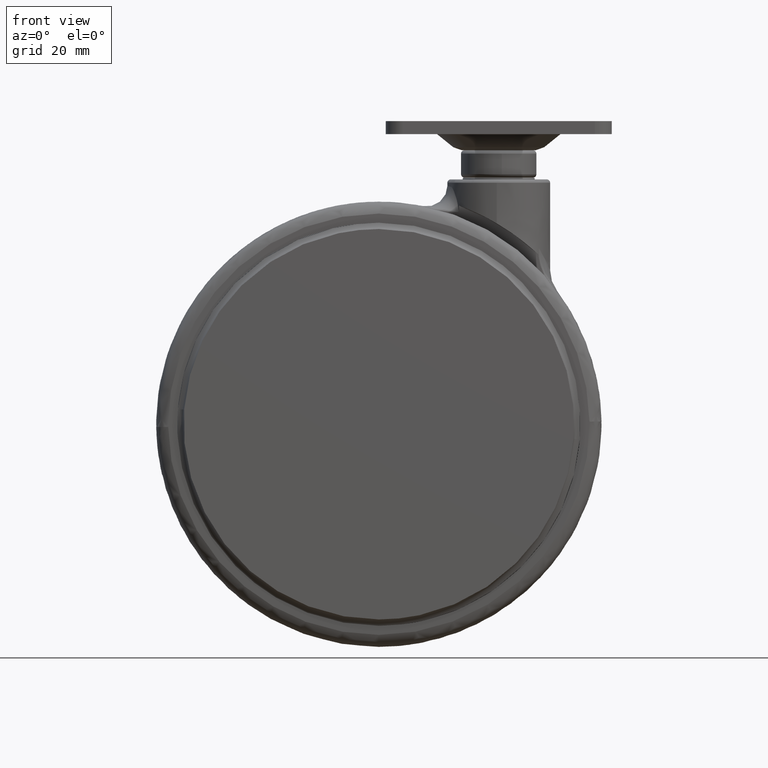
[diagram: clean part render]
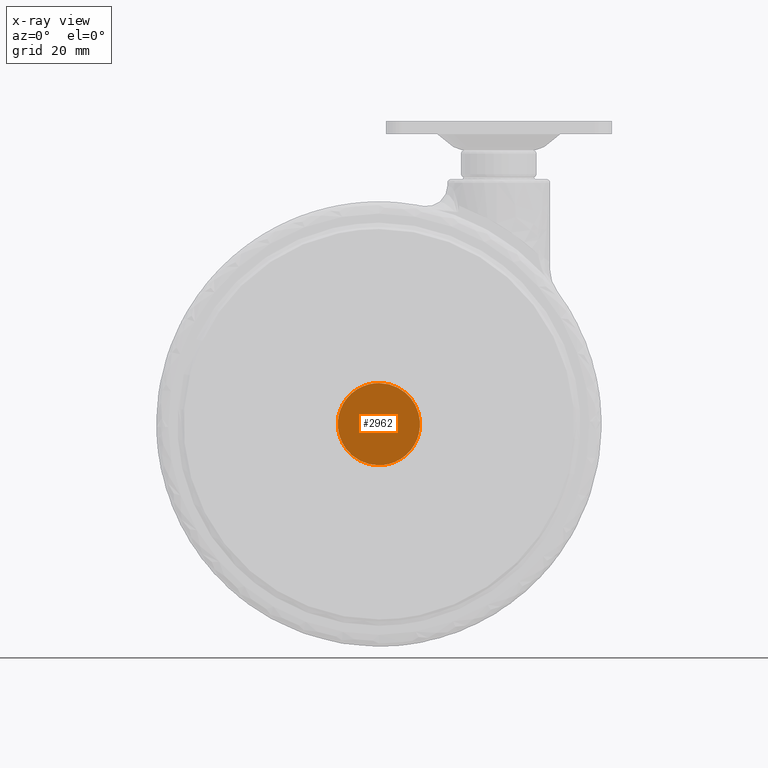
[diagram: x-ray — body ghosted, one internal face saturated and labeled with its STEP entity id]
A machine part, front view, then the same camera in x-ray: the body is ghosted and one INTERNAL B-rep face — a face not visible from any outside direction — is saturated and labeled: STEP entity #2962.
In plain terms, the highlighted face is a freeform B-spline surface patch.
Its self-contained STEP definition (entity closure, byte-faithful):
#2891=CARTESIAN_POINT('',(-21.801214024870561,9.500000000000000,-84.698799953483316));
#2892=CARTESIAN_POINT('',(-21.801214024870571,9.500000000000000,-58.301199402786487));
#2893=CARTESIAN_POINT('',(-48.198785545975987,9.500000000000000,-84.698799953483316));
#2894=CARTESIAN_POINT('',(-48.198785545976001,9.500000000000000,-58.301199402786487));
#2895=B_SPLINE_SURFACE_WITH_KNOTS('',1,1,((#2891,#2893),(#2892,#2894)),.UNSPECIFIED.,.F.,.F.,.U.,(2,2),(2,2),(0.0,26.397600550696819),(0.0,26.397571521105430),.UNSPECIFIED.);
#2896=CARTESIAN_POINT('',(-45.644131890967763,9.500000000000000,-77.040979722726490));
#2897=VERTEX_POINT('',#2896);
#2898=CARTESIAN_POINT('',(-35.0,9.500000000000000,-59.500000000000000));
#2899=VERTEX_POINT('',#2898);
#2900=CARTESIAN_POINT('',(-45.644131890967756,9.499999999999998,-77.040979722726505));
#2901=CARTESIAN_POINT('',(-47.0,9.500000000000000,-74.436379146389015));
#2902=CARTESIAN_POINT('',(-47.0,9.500000000000000,-71.500000000000000));
#2903=CARTESIAN_POINT('',(-47.000000000000007,9.500000000000000,-59.500000000000007));
#2904=CARTESIAN_POINT('',(-35.0,9.500000000000000,-59.500000000000000));
#2912=(BOUNDED_CURVE()B_SPLINE_CURVE(2,(#2900,#2901,#2902,#2903,#2904),.UNSPECIFIED.,.F.,.U.)B_SPLINE_CURVE_WITH_KNOTS((3,2,3),(0.671447928644299,0.750000000000000,1.0),.UNSPECIFIED.)CURVE()GEOMETRIC_REPRESENTATION_ITEM()RATIONAL_B_SPLINE_CURVE((0.873773895593870,0.907970523904659,1.0,0.707106781186548,1.0))REPRESENTATION_ITEM(''));
#2913=EDGE_CURVE('',#2897,#2899,#2912,.T.);
#2914=ORIENTED_EDGE('',*,*,#2913,.F.);
#2915=CARTESIAN_POINT('',(-35.0,9.500000000000000,-83.499999999999986));
#2916=VERTEX_POINT('',#2915);
#2917=CARTESIAN_POINT('',(-35.0,9.500000000000000,-83.499999999999986));
#2918=CARTESIAN_POINT('',(-42.281781560133105,9.500000000000000,-83.499999999999986));
#2919=CARTESIAN_POINT('',(-45.644131890968396,9.500000000000002,-77.040979722726803));
#2927=(BOUNDED_CURVE()B_SPLINE_CURVE(2,(#2917,#2918,#2919),.UNSPECIFIED.,.F.,.U.)B_SPLINE_CURVE_WITH_KNOTS((3,3),(0.500000000000000,0.671447928644299),.UNSPECIFIED.)CURVE()GEOMETRIC_REPRESENTATION_ITEM()RATIONAL_B_SPLINE_CURVE((1.0,0.799136257281888,0.873773895593870))REPRESENTATION_ITEM(''));
#2928=EDGE_CURVE('',#2916,#2897,#2927,.T.);
#2929=ORIENTED_EDGE('',*,*,#2928,.F.);
#2930=CARTESIAN_POINT('',(-24.355868109032251,9.500000000000000,-65.959020277273495));
#2931=VERTEX_POINT('',#2930);
#2932=CARTESIAN_POINT('',(-24.355868109032244,9.500000000000000,-65.959020277273495));
#2933=CARTESIAN_POINT('',(-23.000000000000011,9.500000000000002,-68.563620853610999));
#2934=CARTESIAN_POINT('',(-23.0,9.500000000000000,-71.500000000000000));
#2935=CARTESIAN_POINT('',(-23.000000000000007,9.500000000000000,-83.499999999999986));
#2936=CARTESIAN_POINT('',(-35.0,9.500000000000000,-83.499999999999986));
#2944=(BOUNDED_CURVE()B_SPLINE_CURVE(2,(#2932,#2933,#2934,#2935,#2936),.UNSPECIFIED.,.F.,.U.)B_SPLINE_CURVE_WITH_KNOTS((3,2,3),(0.171447928644299,0.250000000000000,0.500000000000000),.UNSPECIFIED.)CURVE()GEOMETRIC_REPRESENTATION_ITEM()RATIONAL_B_SPLINE_CURVE((0.873773895593870,0.907970523904659,1.0,0.707106781186548,1.0))REPRESENTATION_ITEM(''));
#2945=EDGE_CURVE('',#2931,#2916,#2944,.T.);
#2946=ORIENTED_EDGE('',*,*,#2945,.F.);
#2947=CARTESIAN_POINT('',(-35.0,9.500000000000000,-59.500000000000000));
#2948=CARTESIAN_POINT('',(-27.718218439866920,9.500000000000000,-59.500000000000007));
#2949=CARTESIAN_POINT('',(-24.355868109031626,9.500000000000002,-65.959020277273183));
#2957=(BOUNDED_CURVE()B_SPLINE_CURVE(2,(#2947,#2948,#2949),.UNSPECIFIED.,.F.,.U.)B_SPLINE_CURVE_WITH_KNOTS((3,3),(0.0,0.171447928644299),.UNSPECIFIED.)CURVE()GEOMETRIC_REPRESENTATION_ITEM()RATIONAL_B_SPLINE_CURVE((1.0,0.799136257281888,0.873773895593870))REPRESENTATION_ITEM(''));
#2958=EDGE_CURVE('',#2899,#2931,#2957,.T.);
#2959=ORIENTED_EDGE('',*,*,#2958,.F.);
#2960=EDGE_LOOP('',(#2914,#2929,#2946,#2959));
#2961=FACE_OUTER_BOUND('',#2960,.T.);
#2962=ADVANCED_FACE('',(#2961),#2895,.T.);